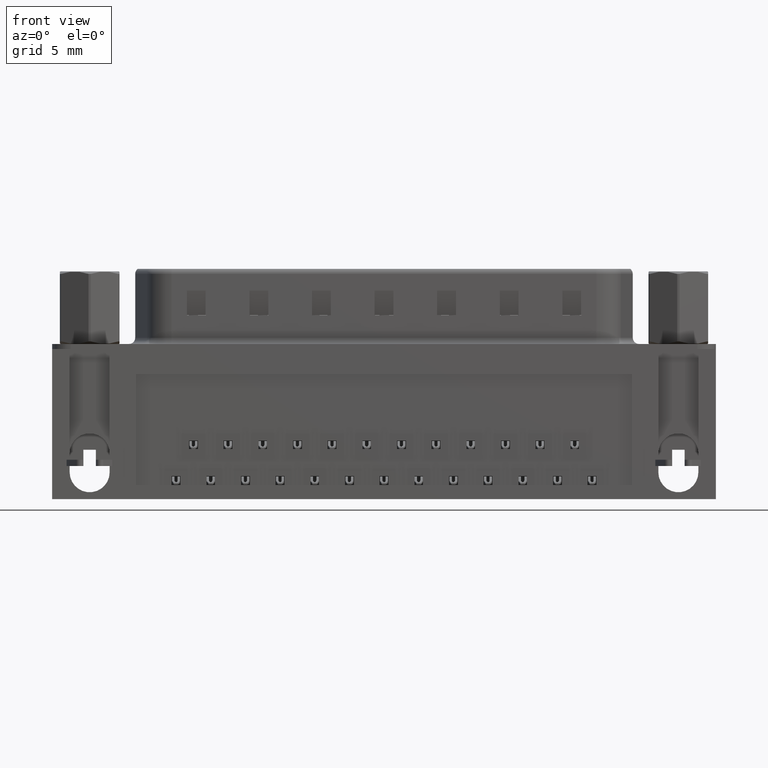
[diagram: clean part render]
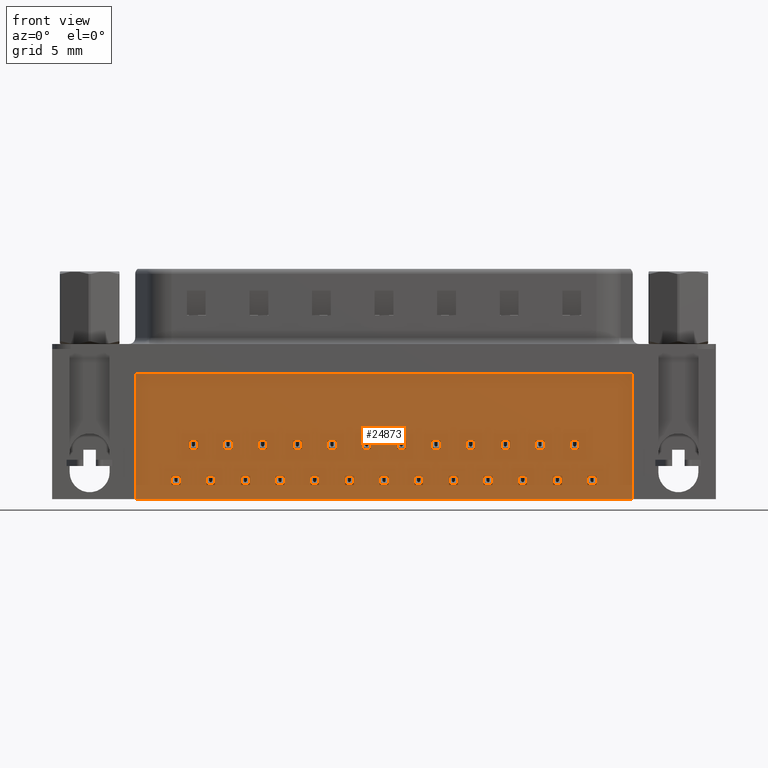
[diagram: same view with one face highlighted and labeled with its STEP entity id]
A machine part, front view. The second image highlights one B-rep face of the part: STEP entity #24873.
In plain terms, the highlighted planar face has unit normal (0, -1, 0).
Its self-contained STEP definition (entity closure, byte-faithful):
#5 = VECTOR ( 'NONE', #21969, 1000.000000000000000 ) ;
#33 = VERTEX_POINT ( 'NONE', #7464 ) ;
#51 = ORIENTED_EDGE ( 'NONE', *, *, #5116, .F. ) ;
#70 = CARTESIAN_POINT ( 'NONE',  ( 20.39999999999998100, -5.925000000000005200, -10.86720000000000000 ) ) ;
#131 = LINE ( 'NONE', #26003, #12666 ) ;
#159 = VECTOR ( 'NONE', #5510, 1000.000000000000000 ) ;
#187 = AXIS2_PLACEMENT_3D ( 'NONE', #24327, #26711, #7249 ) ;
#191 = EDGE_CURVE ( 'NONE', #14712, #21920, #20911, .T. ) ;
#234 = EDGE_CURVE ( 'NONE', #20140, #10738, #17487, .T. ) ;
#244 = LINE ( 'NONE', #1478, #22673 ) ;
#269 = EDGE_CURVE ( 'NONE', #25232, #5629, #19529, .T. ) ;
#293 = DIRECTION ( 'NONE',  ( 1.000000000000000000, 0.0000000000000000000, 0.0000000000000000000 ) ) ;
#329 = VECTOR ( 'NONE', #12126, 1000.000000000000000 ) ;
#367 = VECTOR ( 'NONE', #6105, 1000.000000000000000 ) ;
#414 = LINE ( 'NONE', #18783, #21829 ) ;
#476 = LINE ( 'NONE', #16810, #17108 ) ;
#502 = VERTEX_POINT ( 'NONE', #1288 ) ;
#579 = EDGE_CURVE ( 'NONE', #6992, #17441, #15432, .T. ) ;
#597 = VECTOR ( 'NONE', #14652, 1000.000000000000000 ) ;
#601 = EDGE_CURVE ( 'NONE', #17053, #24453, #13330, .T. ) ;
#628 = LINE ( 'NONE', #8706, #10072 ) ;
#708 = ORIENTED_EDGE ( 'NONE', *, *, #19880, .F. ) ;
#720 = LINE ( 'NONE', #12332, #10482 ) ;
#723 = DIRECTION ( 'NONE',  ( 0.0000000000000000000, 0.0000000000000000000, -1.000000000000000000 ) ) ;
#759 = EDGE_LOOP ( 'NONE', ( #4615, #12276, #17400, #2132 ) ) ;
#791 = FACE_BOUND ( 'NONE', #27803, .T. ) ;
#808 = VERTEX_POINT ( 'NONE', #20643 ) ;
#852 = LINE ( 'NONE', #24885, #23253 ) ;
#865 = EDGE_CURVE ( 'NONE', #3091, #26242, #22528, .T. ) ;
#887 = VERTEX_POINT ( 'NONE', #2472 ) ;
#892 = ORIENTED_EDGE ( 'NONE', *, *, #15813, .F. ) ;
#919 = CARTESIAN_POINT ( 'NONE',  ( 43.33999999999997500, -5.925000000000000700, -2.000000000000000000 ) ) ;
#925 = ORIENTED_EDGE ( 'NONE', *, *, #11595, .F. ) ;
#944 = LINE ( 'NONE', #7709, #4652 ) ;
#1028 = LINE ( 'NONE', #4212, #4041 ) ;
#1059 = ORIENTED_EDGE ( 'NONE', *, *, #21935, .F. ) ;
#1119 = ORIENTED_EDGE ( 'NONE', *, *, #8967, .F. ) ;
#1133 = VECTOR ( 'NONE', #24358, 1000.000000000000000 ) ;
#1147 = EDGE_CURVE ( 'NONE', #808, #8132, #2762, .T. ) ;
#1250 = DIRECTION ( 'NONE',  ( -0.0000000000000000000, -0.0000000000000000000, 1.000000000000000000 ) ) ;
#1288 = CARTESIAN_POINT ( 'NONE',  ( 18.32999999999997700, -5.925000000000004300, -10.86720000000000200 ) ) ;
#1350 = EDGE_LOOP ( 'NONE', ( #51, #7142, #13778, #10130 ) ) ;
#1366 = VECTOR ( 'NONE', #17696, 1000.000000000000000 ) ;
#1405 = DIRECTION ( 'NONE',  ( -1.000000000000000000, -0.0000000000000000000, -0.0000000000000000000 ) ) ;
#1448 = CARTESIAN_POINT ( 'NONE',  ( 12.08999999999997900, -5.925000000000003400, -10.16720000000000300 ) ) ;
#1458 = FACE_BOUND ( 'NONE', #7919, .T. ) ;
#1463 = VECTOR ( 'NONE', #20322, 1000.000000000000000 ) ;
#1475 = EDGE_LOOP ( 'NONE', ( #4044, #19263, #22935, #18608 ) ) ;
#1478 = CARTESIAN_POINT ( 'NONE',  ( 28.70999999999998000, -5.925000000000006900, -10.16720000000000100 ) ) ;
#1484 = EDGE_LOOP ( 'NONE', ( #23321, #8183, #19976, #8482 ) ) ;
#1530 = EDGE_CURVE ( 'NONE', #20278, #10295, #2728, .T. ) ;
#1547 = LINE ( 'NONE', #3702, #23269 ) ;
#1564 = CARTESIAN_POINT ( 'NONE',  ( 12.78999999999997800, -5.925000000000003400, -10.86720000000000200 ) ) ;
#1623 = DIRECTION ( 'NONE',  ( 1.000000000000000000, 0.0000000000000000000, 0.0000000000000000000 ) ) ;
#1656 = CARTESIAN_POINT ( 'NONE',  ( 30.09499999999998500, -5.925000000000006900, -7.327200000000002200 ) ) ;
#1659 = ORIENTED_EDGE ( 'NONE', *, *, #26365, .F. ) ;
#1714 = EDGE_CURVE ( 'NONE', #24566, #26641, #19074, .T. ) ;
#1797 = FACE_BOUND ( 'NONE', #1475, .T. ) ;
#1840 = DIRECTION ( 'NONE',  ( -0.0000000000000000000, -0.0000000000000000000, 1.000000000000000000 ) ) ;
#1914 = VERTEX_POINT ( 'NONE', #10290 ) ;
#1970 = CARTESIAN_POINT ( 'NONE',  ( 24.55499999999997800, -5.925000000000006000, -7.327200000000003000 ) ) ;
#1988 = EDGE_CURVE ( 'NONE', #19812, #19302, #14975, .T. ) ;
#1990 = VECTOR ( 'NONE', #13963, 1000.000000000000000 ) ;
#2021 = ORIENTED_EDGE ( 'NONE', *, *, #3214, .F. ) ;
#2030 = ORIENTED_EDGE ( 'NONE', *, *, #15064, .F. ) ;
#2041 = VERTEX_POINT ( 'NONE', #17032 ) ;
#2115 = EDGE_CURVE ( 'NONE', #12087, #10090, #6748, .T. ) ;
#2125 = VERTEX_POINT ( 'NONE', #23729 ) ;
#2127 = EDGE_CURVE ( 'NONE', #21442, #9343, #23762, .T. ) ;
#2132 = ORIENTED_EDGE ( 'NONE', *, *, #25317, .F. ) ;
#2174 = CARTESIAN_POINT ( 'NONE',  ( 14.17499999999997900, -5.925000000000003400, -8.027200000000005900 ) ) ;
#2250 = CARTESIAN_POINT ( 'NONE',  ( 37.01999999999997500, -5.925000000000008700, -10.16719999999999900 ) ) ;
#2278 = EDGE_CURVE ( 'NONE', #2778, #3559, #27509, .T. ) ;
#2337 = LINE ( 'NONE', #14422, #6394 ) ;
#2343 = DIRECTION ( 'NONE',  ( 1.000000000000000000, 0.0000000000000000000, 0.0000000000000000000 ) ) ;
#2408 = DIRECTION ( 'NONE',  ( 0.0000000000000000000, 0.0000000000000000000, -1.000000000000000000 ) ) ;
#2461 = DIRECTION ( 'NONE',  ( 1.000000000000000000, 0.0000000000000000000, 0.0000000000000000000 ) ) ;
#2472 = CARTESIAN_POINT ( 'NONE',  ( 25.93999999999997600, -5.925000000000006000, -10.86720000000000000 ) ) ;
#2495 = VERTEX_POINT ( 'NONE', #5673 ) ;
#2560 = DIRECTION ( 'NONE',  ( -1.000000000000000000, 1.239088197126279800E-015, -0.0000000000000000000 ) ) ;
#2590 = CARTESIAN_POINT ( 'NONE',  ( 9.319999999999980700, -5.925000000000002500, -10.16720000000000300 ) ) ;
#2600 = VECTOR ( 'NONE', #22510, 1000.000000000000000 ) ;
#2606 = VECTOR ( 'NONE', #14404, 1000.000000000000000 ) ;
#2639 = ORIENTED_EDGE ( 'NONE', *, *, #2127, .F. ) ;
#2640 = VECTOR ( 'NONE', #293, 1000.000000000000000 ) ;
#2679 = VERTEX_POINT ( 'NONE', #14816 ) ;
#2711 = ORIENTED_EDGE ( 'NONE', *, *, #17426, .F. ) ;
#2721 = LINE ( 'NONE', #24144, #9178 ) ;
#2728 = LINE ( 'NONE', #23396, #14315 ) ;
#2734 = DIRECTION ( 'NONE',  ( -1.000000000000000000, -0.0000000000000000000, -0.0000000000000000000 ) ) ;
#2735 = VERTEX_POINT ( 'NONE', #19312 ) ;
#2762 = LINE ( 'NONE', #13815, #3440 ) ;
#2769 = VERTEX_POINT ( 'NONE', #27646 ) ;
#2778 = VERTEX_POINT ( 'NONE', #21389 ) ;
#2780 = VERTEX_POINT ( 'NONE', #14554 ) ;
#2819 = CARTESIAN_POINT ( 'NONE',  ( 31.47999999999997900, -5.925000000000006900, -10.16720000000000100 ) ) ;
#2938 = EDGE_CURVE ( 'NONE', #3267, #24357, #27760, .T. ) ;
#2939 = CARTESIAN_POINT ( 'NONE',  ( 27.32499999999998200, -5.925000000000006000, -8.027200000000004100 ) ) ;
#2956 = ORIENTED_EDGE ( 'NONE', *, *, #18139, .F. ) ;
#2981 = LINE ( 'NONE', #26624, #8064 ) ;
#3044 = VECTOR ( 'NONE', #27657, 1000.000000000000000 ) ;
#3045 = CARTESIAN_POINT ( 'NONE',  ( 11.40499999999998200, -5.925000000000003400, -8.027200000000005900 ) ) ;
#3082 = VECTOR ( 'NONE', #4545, 1000.000000000000000 ) ;
#3091 = VERTEX_POINT ( 'NONE', #3045 ) ;
#3102 = VECTOR ( 'NONE', #24817, 1000.000000000000000 ) ;
#3105 = ORIENTED_EDGE ( 'NONE', *, *, #18675, .F. ) ;
#3214 = EDGE_CURVE ( 'NONE', #6284, #26825, #14521, .T. ) ;
#3231 = ORIENTED_EDGE ( 'NONE', *, *, #27589, .F. ) ;
#3237 = CARTESIAN_POINT ( 'NONE',  ( 37.71999999999997800, -5.925000000000008700, -10.86719999999999900 ) ) ;
#3243 = EDGE_LOOP ( 'NONE', ( #12551, #27005, #22532, #12592 ) ) ;
#3267 = VERTEX_POINT ( 'NONE', #10064 ) ;
#3275 = EDGE_CURVE ( 'NONE', #17269, #8032, #244, .T. ) ;
#3288 = DIRECTION ( 'NONE',  ( 0.0000000000000000000, 0.0000000000000000000, -1.000000000000000000 ) ) ;
#3315 = VECTOR ( 'NONE', #3288, 1000.000000000000000 ) ;
#3440 = VECTOR ( 'NONE', #7074, 1000.000000000000000 ) ;
#3453 = EDGE_LOOP ( 'NONE', ( #18116, #13072, #24637, #25374 ) ) ;
#3460 = ORIENTED_EDGE ( 'NONE', *, *, #28078, .F. ) ;
#3505 = CARTESIAN_POINT ( 'NONE',  ( 31.47999999999997900, -5.925000000000006900, -10.86720000000000000 ) ) ;
#3514 = CARTESIAN_POINT ( 'NONE',  ( 25.93999999999997600, -5.925000000000006000, -10.86720000000000000 ) ) ;
#3525 = VECTOR ( 'NONE', #5172, 1000.000000000000000 ) ;
#3559 = VERTEX_POINT ( 'NONE', #5793 ) ;
#3580 = EDGE_CURVE ( 'NONE', #502, #12087, #25648, .T. ) ;
#3649 = CARTESIAN_POINT ( 'NONE',  ( 32.86499999999998100, -5.925000000000007800, -8.027200000000002300 ) ) ;
#3666 = CARTESIAN_POINT ( 'NONE',  ( 20.39999999999998100, -5.925000000000005200, -10.86720000000000000 ) ) ;
#3668 = DIRECTION ( 'NONE',  ( 0.0000000000000000000, 0.0000000000000000000, -1.000000000000000000 ) ) ;
#3682 = LINE ( 'NONE', #19821, #9783 ) ;
#3695 = CARTESIAN_POINT ( 'NONE',  ( 43.33999999999997500, -5.925000000000000700, -12.00000000000000000 ) ) ;
#3702 = CARTESIAN_POINT ( 'NONE',  ( 12.08999999999997900, -5.925000000000003400, -10.16720000000000300 ) ) ;
#3706 = EDGE_CURVE ( 'NONE', #17702, #502, #16193, .T. ) ;
#3735 = EDGE_LOOP ( 'NONE', ( #17342, #23664, #11905, #8705 ) ) ;
#3741 = LINE ( 'NONE', #11554, #14664 ) ;
#3764 = CARTESIAN_POINT ( 'NONE',  ( 20.39999999999998100, -5.925000000000005200, -10.16720000000000100 ) ) ;
#3847 = LINE ( 'NONE', #27637, #6911 ) ;
#3852 = DIRECTION ( 'NONE',  ( -0.0000000000000000000, -0.0000000000000000000, 1.000000000000000000 ) ) ;
#3929 = EDGE_CURVE ( 'NONE', #20027, #27686, #13420, .T. ) ;
#3955 = CARTESIAN_POINT ( 'NONE',  ( 36.33499999999998700, -5.925000000000000700, -7.327200000000001300 ) ) ;
#4041 = VECTOR ( 'NONE', #10539, 1000.000000000000000 ) ;
#4044 = ORIENTED_EDGE ( 'NONE', *, *, #17957, .F. ) ;
#4103 = DIRECTION ( 'NONE',  ( -1.000000000000000000, -0.0000000000000000000, -0.0000000000000000000 ) ) ;
#4165 = FACE_BOUND ( 'NONE', #3735, .T. ) ;
#4194 = CARTESIAN_POINT ( 'NONE',  ( 38.40499999999998000, -5.925000000000008700, -7.327200000000001300 ) ) ;
#4212 = CARTESIAN_POINT ( 'NONE',  ( 21.09999999999998000, -5.925000000000005200, -10.16720000000000100 ) ) ;
#4304 = EDGE_CURVE ( 'NONE', #24357, #18789, #11010, .T. ) ;
#4382 = CARTESIAN_POINT ( 'NONE',  ( 7.249999999999978700, -5.925000000000002500, -10.16720000000000300 ) ) ;
#4386 = LINE ( 'NONE', #9295, #5 ) ;
#4401 = LINE ( 'NONE', #9527, #21437 ) ;
#4409 = LINE ( 'NONE', #22658, #14636 ) ;
#4411 = DIRECTION ( 'NONE',  ( 1.000000000000000000, -1.239088197126292200E-015, 0.0000000000000000000 ) ) ;
#4439 = LINE ( 'NONE', #12014, #9545 ) ;
#4458 = CARTESIAN_POINT ( 'NONE',  ( 17.62999999999997800, -5.925000000000004300, -10.86720000000000200 ) ) ;
#4470 = EDGE_CURVE ( 'NONE', #18789, #24914, #16147, .T. ) ;
#4513 = VERTEX_POINT ( 'NONE', #5354 ) ;
#4545 = DIRECTION ( 'NONE',  ( 0.0000000000000000000, 0.0000000000000000000, -1.000000000000000000 ) ) ;
#4615 = ORIENTED_EDGE ( 'NONE', *, *, #16059, .F. ) ;
#4640 = EDGE_CURVE ( 'NONE', #24474, #19720, #10293, .T. ) ;
#4652 = VECTOR ( 'NONE', #20670, 1000.000000000000000 ) ;
#4731 = ORIENTED_EDGE ( 'NONE', *, *, #12719, .F. ) ;
#4815 = EDGE_CURVE ( 'NONE', #26674, #17448, #852, .T. ) ;
#4814 = VERTEX_POINT ( 'NONE', #13983 ) ;
#4868 = CARTESIAN_POINT ( 'NONE',  ( 15.55999999999997700, -5.925000000000004300, -10.16720000000000300 ) ) ;
#4900 = CARTESIAN_POINT ( 'NONE',  ( 30.79499999999998700, -5.925000000000006900, -7.327200000000002200 ) ) ;
#4908 = VERTEX_POINT ( 'NONE', #1564 ) ;
#4929 = ORIENTED_EDGE ( 'NONE', *, *, #24986, .F. ) ;
#4931 = CARTESIAN_POINT ( 'NONE',  ( 27.32499999999998200, -5.925000000000006000, -8.027200000000004100 ) ) ;
#4939 = EDGE_CURVE ( 'NONE', #15776, #18421, #22217, .T. ) ;
#5056 = CARTESIAN_POINT ( 'NONE',  ( 27.32499999999998200, -5.925000000000006000, -7.327200000000003000 ) ) ;
#5065 = DIRECTION ( 'NONE',  ( 9.912705577010338000E-015, -0.0000000000000000000, 1.000000000000000000 ) ) ;
#5088 = EDGE_CURVE ( 'NONE', #20308, #13037, #476, .T. ) ;
#5107 = EDGE_CURVE ( 'NONE', #25365, #22670, #14025, .T. ) ;
#5114 = ORIENTED_EDGE ( 'NONE', *, *, #1988, .F. ) ;
#5116 = EDGE_CURVE ( 'NONE', #25086, #20278, #22550, .T. ) ;
#5172 = DIRECTION ( 'NONE',  ( -0.0000000000000000000, -0.0000000000000000000, 1.000000000000000000 ) ) ;
#5174 = FACE_BOUND ( 'NONE', #9631, .T. ) ;
#5245 = LINE ( 'NONE', #21693, #21252 ) ;
#5354 = CARTESIAN_POINT ( 'NONE',  ( 23.86999999999998000, -5.925000000000000700, -10.16720000000000100 ) ) ;
#5366 = VECTOR ( 'NONE', #19607, 1000.000000000000000 ) ;
#5434 = VECTOR ( 'NONE', #3668, 1000.000000000000000 ) ;
#5439 = CARTESIAN_POINT ( 'NONE',  ( 31.47999999999997900, -5.925000000000006900, -10.16720000000000100 ) ) ;
#5440 = EDGE_CURVE ( 'NONE', #21920, #25058, #12996, .T. ) ;
#5495 = CARTESIAN_POINT ( 'NONE',  ( 23.16999999999998000, -5.925000000000005200, -10.16720000000000100 ) ) ;
#5501 = CARTESIAN_POINT ( 'NONE',  ( 32.86499999999998100, -5.925000000000007800, -8.027200000000002300 ) ) ;
#5510 = DIRECTION ( 'NONE',  ( -1.000000000000000000, -0.0000000000000000000, -0.0000000000000000000 ) ) ;
#5525 = FACE_BOUND ( 'NONE', #9267, .T. ) ;
#5590 = CARTESIAN_POINT ( 'NONE',  ( 26.63999999999997600, -5.925000000000006000, -10.16720000000000100 ) ) ;
#5629 = VERTEX_POINT ( 'NONE', #13987 ) ;
#5656 = EDGE_LOOP ( 'NONE', ( #18551, #24995, #12064, #2030 ) ) ;
#5673 = CARTESIAN_POINT ( 'NONE',  ( 40.48999999999998100, -5.925000000000000700, -10.16719999999999900 ) ) ;
#5704 = EDGE_CURVE ( 'NONE', #22115, #24982, #22519, .T. ) ;
#5717 = VECTOR ( 'NONE', #26323, 1000.000000000000000 ) ;
#5793 = CARTESIAN_POINT ( 'NONE',  ( 23.16999999999998000, -5.925000000000005200, -10.86720000000000000 ) ) ;
#5802 = VERTEX_POINT ( 'NONE', #3505 ) ;
#5961 = VECTOR ( 'NONE', #16384, 1000.000000000000000 ) ;
#5991 = VECTOR ( 'NONE', #723, 1000.000000000000000 ) ;
#5997 = EDGE_CURVE ( 'NONE', #10295, #12198, #20784, .T. ) ;
#6043 = DIRECTION ( 'NONE',  ( -1.000000000000000000, -0.0000000000000000000, -0.0000000000000000000 ) ) ;
#6072 = CARTESIAN_POINT ( 'NONE',  ( 34.94999999999998200, -5.925000000000007800, -10.86719999999999900 ) ) ;
#6082 = ORIENTED_EDGE ( 'NONE', *, *, #191, .F. ) ;
#6102 = ORIENTED_EDGE ( 'NONE', *, *, #21554, .F. ) ;
#6105 = DIRECTION ( 'NONE',  ( 0.0000000000000000000, 0.0000000000000000000, -1.000000000000000000 ) ) ;
#6147 = VERTEX_POINT ( 'NONE', #13923 ) ;
#6179 = CARTESIAN_POINT ( 'NONE',  ( 21.09999999999998000, -5.925000000000000700, -10.16720000000000100 ) ) ;
#6196 = FACE_BOUND ( 'NONE', #3243, .T. ) ;
#6237 = CARTESIAN_POINT ( 'NONE',  ( 32.86499999999998100, -5.925000000000007800, -7.327200000000002200 ) ) ;
#6248 = ORIENTED_EDGE ( 'NONE', *, *, #15764, .F. ) ;
#6284 = VERTEX_POINT ( 'NONE', #23105 ) ;
#6291 = VERTEX_POINT ( 'NONE', #12451 ) ;
#6300 = VERTEX_POINT ( 'NONE', #24155 ) ;
#6346 = DIRECTION ( 'NONE',  ( -1.000000000000000000, -0.0000000000000000000, -0.0000000000000000000 ) ) ;
#6369 = EDGE_CURVE ( 'NONE', #6972, #2125, #4409, .T. ) ;
#6394 = VECTOR ( 'NONE', #1405, 1000.000000000000000 ) ;
#6425 = LINE ( 'NONE', #12302, #22130 ) ;
#6451 = LINE ( 'NONE', #4194, #24820 ) ;
#6486 = VECTOR ( 'NONE', #9126, 1000.000000000000000 ) ;
#6509 = FACE_BOUND ( 'NONE', #15004, .T. ) ;
#6540 = CARTESIAN_POINT ( 'NONE',  ( 16.94499999999998600, -5.925000000000000700, -7.327200000000003900 ) ) ;
#6553 = DIRECTION ( 'NONE',  ( -0.0000000000000000000, -0.0000000000000000000, 1.000000000000000000 ) ) ;
#6617 = CARTESIAN_POINT ( 'NONE',  ( 8.634999999999989100, -5.925000000000000700, -7.327200000000004800 ) ) ;
#6651 = DIRECTION ( 'NONE',  ( 1.000000000000000000, 0.0000000000000000000, 0.0000000000000000000 ) ) ;
#6656 = EDGE_CURVE ( 'NONE', #10090, #17702, #4439, .T. ) ;
#6725 = DIRECTION ( 'NONE',  ( 9.912705577010325400E-015, -0.0000000000000000000, 1.000000000000000000 ) ) ;
#6748 = LINE ( 'NONE', #19513, #22433 ) ;
#6801 = ORIENTED_EDGE ( 'NONE', *, *, #2278, .F. ) ;
#6834 = VECTOR ( 'NONE', #11097, 1000.000000000000000 ) ;
#6887 = ORIENTED_EDGE ( 'NONE', *, *, #8843, .F. ) ;
#6890 = CARTESIAN_POINT ( 'NONE',  ( 17.62999999999997800, -5.925000000000004300, -10.86720000000000200 ) ) ;
#6911 = VECTOR ( 'NONE', #14647, 1000.000000000000000 ) ;
#6972 = VERTEX_POINT ( 'NONE', #23078 ) ;
#6992 = VERTEX_POINT ( 'NONE', #14250 ) ;
#6994 = CARTESIAN_POINT ( 'NONE',  ( 6.549999999999979400, -5.925000000000002500, -10.86720000000000200 ) ) ;
#7031 = EDGE_CURVE ( 'NONE', #10687, #22115, #17348, .T. ) ;
#7057 = EDGE_CURVE ( 'NONE', #18421, #25232, #720, .T. ) ;
#7074 = DIRECTION ( 'NONE',  ( 1.000000000000000000, 0.0000000000000000000, 0.0000000000000000000 ) ) ;
#7106 = LINE ( 'NONE', #20238, #26128 ) ;
#7142 = ORIENTED_EDGE ( 'NONE', *, *, #8695, .F. ) ;
#7155 = CARTESIAN_POINT ( 'NONE',  ( 39.10499999999999000, -5.925000000000000700, -7.327200000000001300 ) ) ;
#7249 = DIRECTION ( 'NONE',  ( 0.0000000000000000000, 0.0000000000000000000, -1.000000000000000000 ) ) ;
#7288 = VECTOR ( 'NONE', #4411, 1000.000000000000000 ) ;
#7391 = DIRECTION ( 'NONE',  ( 0.0000000000000000000, 0.0000000000000000000, -1.000000000000000000 ) ) ;
#7436 = ORIENTED_EDGE ( 'NONE', *, *, #19604, .F. ) ;
#7464 = CARTESIAN_POINT ( 'NONE',  ( 29.40999999999997900, -5.925000000000006900, -10.86720000000000000 ) ) ;
#7586 = ORIENTED_EDGE ( 'NONE', *, *, #601, .F. ) ;
#7593 = ORIENTED_EDGE ( 'NONE', *, *, #4640, .F. ) ;
#7606 = VECTOR ( 'NONE', #8886, 1000.000000000000000 ) ;
#7644 = VECTOR ( 'NONE', #7904, 1000.000000000000000 ) ;
#7709 = CARTESIAN_POINT ( 'NONE',  ( 6.549999999999979400, -5.925000000000002500, -10.16720000000000300 ) ) ;
#7873 = ORIENTED_EDGE ( 'NONE', *, *, #26404, .F. ) ;
#7904 = DIRECTION ( 'NONE',  ( -0.0000000000000000000, -0.0000000000000000000, 1.000000000000000000 ) ) ;
#7919 = EDGE_LOOP ( 'NONE', ( #20067, #892, #13051, #13596 ) ) ;
#7925 = CARTESIAN_POINT ( 'NONE',  ( 28.02499999999998800, -5.925000000000006000, -7.327200000000003000 ) ) ;
#7986 = LINE ( 'NONE', #20868, #7644 ) ;
#8015 = DIRECTION ( 'NONE',  ( -0.0000000000000000000, -0.0000000000000000000, 1.000000000000000000 ) ) ;
#8032 = VERTEX_POINT ( 'NONE', #20139 ) ;
#8040 = LINE ( 'NONE', #10493, #2640 ) ;
#8054 = CARTESIAN_POINT ( 'NONE',  ( 30.79499999999998700, -5.925000000000000700, -7.327200000000002200 ) ) ;
#8055 = CARTESIAN_POINT ( 'NONE',  ( 14.85999999999997800, -5.925000000000003400, -10.16720000000000300 ) ) ;
#8064 = VECTOR ( 'NONE', #26726, 1000.000000000000000 ) ;
#8067 = LINE ( 'NONE', #24118, #5366 ) ;
#8084 = LINE ( 'NONE', #6237, #21054 ) ;
#8102 = VERTEX_POINT ( 'NONE', #18526 ) ;
#8119 = LINE ( 'NONE', #4931, #1366 ) ;
#8132 = VERTEX_POINT ( 'NONE', #20609 ) ;
#8156 = DIRECTION ( 'NONE',  ( 9.912705577010325400E-015, -0.0000000000000000000, 1.000000000000000000 ) ) ;
#8157 = CARTESIAN_POINT ( 'NONE',  ( 30.09499999999998500, -5.925000000000006900, -8.027200000000004100 ) ) ;
#8183 = ORIENTED_EDGE ( 'NONE', *, *, #16681, .F. ) ;
#8275 = DIRECTION ( 'NONE',  ( 0.0000000000000000000, 0.0000000000000000000, -1.000000000000000000 ) ) ;
#8370 = LINE ( 'NONE', #15869, #2600 ) ;
#8377 = DIRECTION ( 'NONE',  ( 0.0000000000000000000, 0.0000000000000000000, -1.000000000000000000 ) ) ;
#8403 = EDGE_CURVE ( 'NONE', #15360, #12580, #16021, .T. ) ;
#8446 = EDGE_CURVE ( 'NONE', #27029, #10687, #11178, .T. ) ;
#8482 = ORIENTED_EDGE ( 'NONE', *, *, #8664, .F. ) ;
#8568 = FACE_BOUND ( 'NONE', #12962, .T. ) ;
#8664 = EDGE_CURVE ( 'NONE', #19086, #25555, #13938, .T. ) ;
#8695 = EDGE_CURVE ( 'NONE', #12198, #25086, #26855, .T. ) ;
#8705 = ORIENTED_EDGE ( 'NONE', *, *, #14782, .F. ) ;
#8706 = CARTESIAN_POINT ( 'NONE',  ( 10.70499999999998200, -5.925000000000002500, -8.027200000000005900 ) ) ;
#8735 = CARTESIAN_POINT ( 'NONE',  ( 10.01999999999998000, -5.925000000000002500, -10.86720000000000200 ) ) ;
#8740 = LINE ( 'NONE', #7925, #12123 ) ;
#8803 = ORIENTED_EDGE ( 'NONE', *, *, #6369, .F. ) ;
#8843 = EDGE_CURVE ( 'NONE', #27077, #4908, #7106, .T. ) ;
#8867 = LINE ( 'NONE', #13705, #11597 ) ;
#8886 = DIRECTION ( 'NONE',  ( -1.000000000000000000, -0.0000000000000000000, -0.0000000000000000000 ) ) ;
#8923 = LINE ( 'NONE', #19279, #10945 ) ;
#8967 = EDGE_CURVE ( 'NONE', #4513, #2778, #2337, .T. ) ;
#9080 = CARTESIAN_POINT ( 'NONE',  ( 39.10499999999998300, -5.925000000000008700, -8.027200000000002300 ) ) ;
#9099 = EDGE_CURVE ( 'NONE', #2769, #6972, #11123, .T. ) ;
#9126 = DIRECTION ( 'NONE',  ( -0.0000000000000000000, -0.0000000000000000000, 1.000000000000000000 ) ) ;
#9128 = CARTESIAN_POINT ( 'NONE',  ( 21.78499999999998200, -5.925000000000005200, -8.027200000000004100 ) ) ;
#9178 = VECTOR ( 'NONE', #11400, 1000.000000000000000 ) ;
#9259 = DIRECTION ( 'NONE',  ( 9.912705577010312700E-015, -0.0000000000000000000, 1.000000000000000000 ) ) ;
#9267 = EDGE_LOOP ( 'NONE', ( #27436, #24636, #16311, #10647 ) ) ;
#9284 = EDGE_CURVE ( 'NONE', #9316, #19086, #8740, .T. ) ;
#9295 = CARTESIAN_POINT ( 'NONE',  ( 8.634999999999989100, -5.925000000000002500, -7.327200000000004800 ) ) ;
#9316 = VERTEX_POINT ( 'NONE', #16589 ) ;
#9329 = LINE ( 'NONE', #17244, #7288 ) ;
#9343 = VERTEX_POINT ( 'NONE', #27401 ) ;
#9468 = CARTESIAN_POINT ( 'NONE',  ( 37.01999999999997500, -5.925000000000008700, -10.16719999999999900 ) ) ;
#9501 = LINE ( 'NONE', #25446, #3044 ) ;
#9527 = CARTESIAN_POINT ( 'NONE',  ( 35.63499999999997700, -5.925000000000007800, -8.027200000000002300 ) ) ;
#9536 = CARTESIAN_POINT ( 'NONE',  ( 38.40499999999998000, -5.925000000000008700, -8.027200000000002300 ) ) ;
#9545 = VECTOR ( 'NONE', #14115, 1000.000000000000000 ) ;
#9561 = LINE ( 'NONE', #19050, #23519 ) ;
#9585 = CARTESIAN_POINT ( 'NONE',  ( 10.70499999999998200, -5.925000000000002500, -7.327200000000004800 ) ) ;
#9631 = EDGE_LOOP ( 'NONE', ( #11946, #2956, #7873, #925 ) ) ;
#9634 = ORIENTED_EDGE ( 'NONE', *, *, #18216, .F. ) ;
#9704 = EDGE_CURVE ( 'NONE', #2679, #17667, #26725, .T. ) ;
#9712 = VERTEX_POINT ( 'NONE', #17831 ) ;
#9719 = DIRECTION ( 'NONE',  ( 0.0000000000000000000, 0.0000000000000000000, -1.000000000000000000 ) ) ;
#9783 = VECTOR ( 'NONE', #11397, 1000.000000000000000 ) ;
#9835 = EDGE_CURVE ( 'NONE', #25555, #26882, #11763, .T. ) ;
#9869 = CARTESIAN_POINT ( 'NONE',  ( 13.47499999999998000, -5.925000000000003400, -7.327200000000004800 ) ) ;
#9985 = VERTEX_POINT ( 'NONE', #17353 ) ;
#10051 = DIRECTION ( 'NONE',  ( 1.000000000000000000, 0.0000000000000000000, 0.0000000000000000000 ) ) ;
#10064 = CARTESIAN_POINT ( 'NONE',  ( 32.86499999999998100, -5.925000000000007800, -7.327200000000002200 ) ) ;
#10065 = LINE ( 'NONE', #13947, #3315 ) ;
#10072 = VECTOR ( 'NONE', #10678, 1000.000000000000000 ) ;
#10090 = VERTEX_POINT ( 'NONE', #13154 ) ;
#10130 = ORIENTED_EDGE ( 'NONE', *, *, #1530, .F. ) ;
#10174 = CARTESIAN_POINT ( 'NONE',  ( 13.47499999999998000, -5.925000000000003400, -8.027200000000005900 ) ) ;
#10290 = CARTESIAN_POINT ( 'NONE',  ( 23.86999999999998000, -5.925000000000005200, -10.86720000000000000 ) ) ;
#10293 = LINE ( 'NONE', #17606, #26300 ) ;
#10295 = VERTEX_POINT ( 'NONE', #1656 ) ;
#10318 = ORIENTED_EDGE ( 'NONE', *, *, #8403, .F. ) ;
#10338 = CARTESIAN_POINT ( 'NONE',  ( 23.16999999999998000, -5.925000000000005200, -10.86720000000000000 ) ) ;
#10341 = LINE ( 'NONE', #14610, #12415 ) ;
#10482 = VECTOR ( 'NONE', #23346, 1000.000000000000000 ) ;
#10493 = CARTESIAN_POINT ( 'NONE',  ( 39.78999999999997800, -5.925000000000008700, -10.86719999999999900 ) ) ;
#10539 = DIRECTION ( 'NONE',  ( -0.0000000000000000000, -0.0000000000000000000, 1.000000000000000000 ) ) ;
#10596 = DIRECTION ( 'NONE',  ( 0.0000000000000000000, 0.0000000000000000000, -1.000000000000000000 ) ) ;
#10647 = ORIENTED_EDGE ( 'NONE', *, *, #2115, .F. ) ;
#10648 = CARTESIAN_POINT ( 'NONE',  ( 19.71499999999998200, -5.925000000000005200, -8.027200000000004100 ) ) ;
#10678 = DIRECTION ( 'NONE',  ( 1.000000000000000000, -1.239088197126292200E-015, 0.0000000000000000000 ) ) ;
#10687 = VERTEX_POINT ( 'NONE', #9536 ) ;
#10721 = ORIENTED_EDGE ( 'NONE', *, *, #5704, .F. ) ;
#10738 = VERTEX_POINT ( 'NONE', #14485 ) ;
#10801 = LINE ( 'NONE', #27337, #329 ) ;
#10876 = EDGE_LOOP ( 'NONE', ( #3460, #28089, #21671, #7586 ) ) ;
#10894 = CARTESIAN_POINT ( 'NONE',  ( 11.40499999999998900, -5.925000000000003400, -7.327200000000004800 ) ) ;
#10905 = CARTESIAN_POINT ( 'NONE',  ( 15.55999999999997700, -5.925000000000000700, -10.16720000000000300 ) ) ;
#10910 = CARTESIAN_POINT ( 'NONE',  ( 24.55499999999997800, -5.925000000000006000, -7.327200000000003000 ) ) ;
#10944 = VECTOR ( 'NONE', #18816, 1000.000000000000000 ) ;
#10945 = VECTOR ( 'NONE', #15087, 1000.000000000000000 ) ;
#10958 = DIRECTION ( 'NONE',  ( -1.000000000000000000, -0.0000000000000000000, -0.0000000000000000000 ) ) ;
#10965 = CARTESIAN_POINT ( 'NONE',  ( 14.85999999999997800, -5.925000000000003400, -10.86720000000000200 ) ) ;
#11010 = LINE ( 'NONE', #3649, #16172 ) ;
#11065 = VECTOR ( 'NONE', #2408, 1000.000000000000000 ) ;
#11097 = DIRECTION ( 'NONE',  ( -8.673617379884035500E-017, 0.0000000000000000000, -1.000000000000000000 ) ) ;
#11123 = LINE ( 'NONE', #27773, #16279 ) ;
#11127 = VECTOR ( 'NONE', #22986, 1000.000000000000000 ) ;
#11132 = LINE ( 'NONE', #9128, #26444 ) ;
#11154 = CARTESIAN_POINT ( 'NONE',  ( 30.09499999999998500, -5.925000000000006900, -8.027200000000004100 ) ) ;
#11178 = LINE ( 'NONE', #23403, #22779 ) ;
#11189 = CARTESIAN_POINT ( 'NONE',  ( 27.32499999999998200, -5.925000000000006000, -7.327200000000003000 ) ) ;
#11225 = EDGE_LOOP ( 'NONE', ( #6102, #17516, #18492, #14901 ) ) ;
#11390 = CARTESIAN_POINT ( 'NONE',  ( 18.32999999999997700, -5.925000000000000700, -10.16720000000000300 ) ) ;
#11397 = DIRECTION ( 'NONE',  ( 1.000000000000000000, 0.0000000000000000000, 0.0000000000000000000 ) ) ;
#11400 = DIRECTION ( 'NONE',  ( -0.0000000000000000000, -0.0000000000000000000, 1.000000000000000000 ) ) ;
#11460 = EDGE_CURVE ( 'NONE', #5802, #14712, #15044, .T. ) ;
#11469 = VECTOR ( 'NONE', #16724, 1000.000000000000000 ) ;
#11477 = LINE ( 'NONE', #23718, #11803 ) ;
#11554 = CARTESIAN_POINT ( 'NONE',  ( 20.39999999999998100, -5.925000000000005200, -10.16720000000000100 ) ) ;
#11576 = CARTESIAN_POINT ( 'NONE',  ( 6.549999999999979400, -5.925000000000002500, -10.86720000000000200 ) ) ;
#11595 = EDGE_CURVE ( 'NONE', #12894, #14565, #25545, .T. ) ;
#11597 = VECTOR ( 'NONE', #5065, 1000.000000000000000 ) ;
#11643 = EDGE_CURVE ( 'NONE', #18008, #33, #17780, .T. ) ;
#11763 = LINE ( 'NONE', #5056, #5991 ) ;
#11803 = VECTOR ( 'NONE', #10596, 1000.000000000000000 ) ;
#11828 = LINE ( 'NONE', #11576, #11469 ) ;
#11903 = EDGE_LOOP ( 'NONE', ( #4929, #21432, #20099, #2639 ) ) ;
#11905 = ORIENTED_EDGE ( 'NONE', *, *, #2938, .F. ) ;
#11935 = EDGE_CURVE ( 'NONE', #6300, #9712, #23491, .T. ) ;
#11946 = ORIENTED_EDGE ( 'NONE', *, *, #25170, .F. ) ;
#12014 = CARTESIAN_POINT ( 'NONE',  ( 17.62999999999997800, -5.925000000000004300, -10.16720000000000300 ) ) ;
#12018 = DIRECTION ( 'NONE',  ( -1.000000000000000000, -0.0000000000000000000, -0.0000000000000000000 ) ) ;
#12064 = ORIENTED_EDGE ( 'NONE', *, *, #579, .F. ) ;
#12082 = DIRECTION ( 'NONE',  ( 0.0000000000000000000, 0.0000000000000000000, -1.000000000000000000 ) ) ;
#12087 = VERTEX_POINT ( 'NONE', #11390 ) ;
#12091 = EDGE_CURVE ( 'NONE', #9985, #26674, #14691, .T. ) ;
#12123 = VECTOR ( 'NONE', #18808, 1000.000000000000000 ) ;
#12126 = DIRECTION ( 'NONE',  ( 9.912705577010325400E-015, -0.0000000000000000000, 1.000000000000000000 ) ) ;
#12183 = DIRECTION ( 'NONE',  ( -1.000000000000000000, -0.0000000000000000000, -0.0000000000000000000 ) ) ;
#12191 = DIRECTION ( 'NONE',  ( -1.000000000000000000, -0.0000000000000000000, -0.0000000000000000000 ) ) ;
#12198 = VERTEX_POINT ( 'NONE', #8157 ) ;
#12276 = ORIENTED_EDGE ( 'NONE', *, *, #19996, .F. ) ;
#12301 = FACE_BOUND ( 'NONE', #11903, .T. ) ;
#12302 = CARTESIAN_POINT ( 'NONE',  ( 7.934999999999983600, -5.925000000000002500, -7.327200000000004800 ) ) ;
#12323 = CARTESIAN_POINT ( 'NONE',  ( 34.94999999999998200, -5.925000000000000700, -10.16719999999999900 ) ) ;
#12332 = CARTESIAN_POINT ( 'NONE',  ( 14.17499999999998600, -5.925000000000003400, -7.327200000000004800 ) ) ;
#12371 = CARTESIAN_POINT ( 'NONE',  ( 25.25499999999998500, -5.925000000000006000, -7.327200000000003000 ) ) ;
#12415 = VECTOR ( 'NONE', #8015, 1000.000000000000000 ) ;
#12423 = VECTOR ( 'NONE', #1250, 1000.000000000000000 ) ;
#12451 = CARTESIAN_POINT ( 'NONE',  ( 40.48999999999998100, -5.925000000000008700, -10.86719999999999900 ) ) ;
#12545 = VECTOR ( 'NONE', #27065, 1000.000000000000000 ) ;
#12551 = ORIENTED_EDGE ( 'NONE', *, *, #12091, .F. ) ;
#12552 = EDGE_CURVE ( 'NONE', #22670, #20027, #3741, .T. ) ;
#12580 = VERTEX_POINT ( 'NONE', #20981 ) ;
#12591 = CARTESIAN_POINT ( 'NONE',  ( 7.249999999999978700, -5.925000000000002500, -10.86720000000000200 ) ) ;
#12592 = ORIENTED_EDGE ( 'NONE', *, *, #4815, .F. ) ;
#12600 = ORIENTED_EDGE ( 'NONE', *, *, #26359, .F. ) ;
#12656 = CARTESIAN_POINT ( 'NONE',  ( 14.17499999999998600, -5.925000000000000700, -7.327200000000004800 ) ) ;
#12666 = VECTOR ( 'NONE', #23730, 1000.000000000000000 ) ;
#12670 = FACE_BOUND ( 'NONE', #13948, .T. ) ;
#12708 = CARTESIAN_POINT ( 'NONE',  ( 12.08999999999997900, -5.925000000000003400, -10.86720000000000200 ) ) ;
#12719 = EDGE_CURVE ( 'NONE', #18465, #24474, #6425, .T. ) ;
#12743 = VECTOR ( 'NONE', #25787, 1000.000000000000000 ) ;
#12773 = ORIENTED_EDGE ( 'NONE', *, *, #13053, .F. ) ;
#12861 = VERTEX_POINT ( 'NONE', #13106 ) ;
#12873 = CARTESIAN_POINT ( 'NONE',  ( 32.17999999999997800, -5.925000000000006900, -10.16720000000000100 ) ) ;
#12894 = VERTEX_POINT ( 'NONE', #13974 ) ;
#12959 = ORIENTED_EDGE ( 'NONE', *, *, #13821, .F. ) ;
#12962 = EDGE_LOOP ( 'NONE', ( #17963, #9634, #14481, #26153 ) ) ;
#12996 = LINE ( 'NONE', #2819, #1463 ) ;
#13037 = VERTEX_POINT ( 'NONE', #23291 ) ;
#13051 = ORIENTED_EDGE ( 'NONE', *, *, #22868, .F. ) ;
#13052 = VECTOR ( 'NONE', #19207, 1000.000000000000000 ) ;
#13053 = EDGE_CURVE ( 'NONE', #3559, #1914, #25807, .T. ) ;
#13072 = ORIENTED_EDGE ( 'NONE', *, *, #18093, .T. ) ;
#13084 = CARTESIAN_POINT ( 'NONE',  ( 7.934999999999983600, -5.925000000000002500, -8.027200000000005900 ) ) ;
#13101 = LINE ( 'NONE', #27287, #5961 ) ;
#13106 = CARTESIAN_POINT ( 'NONE',  ( 36.33499999999998000, -5.925000000000007800, -8.027200000000002300 ) ) ;
#13154 = CARTESIAN_POINT ( 'NONE',  ( 17.62999999999997800, -5.925000000000004300, -10.16720000000000300 ) ) ;
#13242 = EDGE_CURVE ( 'NONE', #13037, #2041, #14668, .T. ) ;
#13244 = VECTOR ( 'NONE', #1840, 1000.000000000000000 ) ;
#13295 = DIRECTION ( 'NONE',  ( 9.912705577010325400E-015, -0.0000000000000000000, 1.000000000000000000 ) ) ;
#13330 = LINE ( 'NONE', #18840, #26950 ) ;
#13420 = LINE ( 'NONE', #3666, #12743 ) ;
#13596 = ORIENTED_EDGE ( 'NONE', *, *, #234, .F. ) ;
#13666 = FACE_BOUND ( 'NONE', #27304, .T. ) ;
#13705 = CARTESIAN_POINT ( 'NONE',  ( 19.71499999999998900, -5.925000000000005200, -7.327200000000003900 ) ) ;
#13738 = DIRECTION ( 'NONE',  ( 0.0000000000000000000, 0.0000000000000000000, -1.000000000000000000 ) ) ;
#13744 = CARTESIAN_POINT ( 'NONE',  ( 28.02499999999998800, -5.925000000000000700, -7.327200000000003000 ) ) ;
#13748 = CARTESIAN_POINT ( 'NONE',  ( 19.71499999999998900, -5.925000000000000700, -7.327200000000003900 ) ) ;
#13778 = ORIENTED_EDGE ( 'NONE', *, *, #5997, .F. ) ;
#13815 = CARTESIAN_POINT ( 'NONE',  ( 24.55499999999997800, -5.925000000000006000, -8.027200000000004100 ) ) ;
#13821 = EDGE_CURVE ( 'NONE', #1914, #4513, #2721, .T. ) ;
#13923 = CARTESIAN_POINT ( 'NONE',  ( 37.01999999999997500, -5.925000000000008700, -10.86719999999999900 ) ) ;
#13938 = LINE ( 'NONE', #24270, #17688 ) ;
#13947 = CARTESIAN_POINT ( 'NONE',  ( 31.47999999999997900, -5.925000000000006900, -10.16720000000000100 ) ) ;
#13948 = EDGE_LOOP ( 'NONE', ( #23404, #6887, #12600, #2021 ) ) ;
#13963 = DIRECTION ( 'NONE',  ( 0.0000000000000000000, 0.0000000000000000000, -1.000000000000000000 ) ) ;
#13974 = CARTESIAN_POINT ( 'NONE',  ( 37.71999999999997800, -5.925000000000000700, -10.16719999999999900 ) ) ;
#13983 = CARTESIAN_POINT ( 'NONE',  ( 6.549999999999979400, -5.925000000000002500, -10.16720000000000300 ) ) ;
#13987 = CARTESIAN_POINT ( 'NONE',  ( 13.47499999999998000, -5.925000000000003400, -7.327200000000004800 ) ) ;
#14025 = LINE ( 'NONE', #3764, #21861 ) ;
#14032 = EDGE_CURVE ( 'NONE', #5629, #15776, #15109, .T. ) ;
#14115 = DIRECTION ( 'NONE',  ( 0.0000000000000000000, 0.0000000000000000000, -1.000000000000000000 ) ) ;
#14160 = ORIENTED_EDGE ( 'NONE', *, *, #19699, .F. ) ;
#14161 = CARTESIAN_POINT ( 'NONE',  ( 16.24499999999998300, -5.925000000000004300, -7.327200000000003900 ) ) ;
#14192 = CARTESIAN_POINT ( 'NONE',  ( 39.78999999999997800, -5.925000000000008700, -10.16719999999999900 ) ) ;
#14227 = EDGE_CURVE ( 'NONE', #27906, #24566, #11828, .T. ) ;
#14250 = CARTESIAN_POINT ( 'NONE',  ( 35.63499999999997700, -5.925000000000007800, -7.327200000000001300 ) ) ;
#14278 = VECTOR ( 'NONE', #9719, 1000.000000000000000 ) ;
#14313 = EDGE_CURVE ( 'NONE', #20025, #20140, #27137, .T. ) ;
#14315 = VECTOR ( 'NONE', #12191, 1000.000000000000000 ) ;
#14404 = DIRECTION ( 'NONE',  ( 9.912705577010325400E-015, -0.0000000000000000000, 1.000000000000000000 ) ) ;
#14422 = CARTESIAN_POINT ( 'NONE',  ( 23.16999999999998000, -5.925000000000005200, -10.16720000000000100 ) ) ;
#14425 = CARTESIAN_POINT ( 'NONE',  ( 34.94999999999998200, -5.925000000000007800, -10.16719999999999900 ) ) ;
#14426 = ORIENTED_EDGE ( 'NONE', *, *, #4939, .F. ) ;
#14440 = VERTEX_POINT ( 'NONE', #19383 ) ;
#14469 = CARTESIAN_POINT ( 'NONE',  ( 18.32999999999997700, -5.925000000000004300, -10.16720000000000300 ) ) ;
#14481 = ORIENTED_EDGE ( 'NONE', *, *, #13242, .F. ) ;
#14485 = CARTESIAN_POINT ( 'NONE',  ( 25.93999999999997600, -5.925000000000006000, -10.16720000000000100 ) ) ;
#14517 = DIRECTION ( 'NONE',  ( -1.000000000000000000, -0.0000000000000000000, -0.0000000000000000000 ) ) ;
#14521 = LINE ( 'NONE', #1448, #597 ) ;
#14554 = CARTESIAN_POINT ( 'NONE',  ( 25.25499999999998500, -5.925000000000000700, -7.327200000000003000 ) ) ;
#14565 = VERTEX_POINT ( 'NONE', #2250 ) ;
#14592 = VECTOR ( 'NONE', #6651, 1000.000000000000000 ) ;
#14610 = CARTESIAN_POINT ( 'NONE',  ( 40.48999999999998100, -5.925000000000008700, -10.16719999999999900 ) ) ;
#14636 = VECTOR ( 'NONE', #18298, 1000.000000000000000 ) ;
#14647 = DIRECTION ( 'NONE',  ( 9.912705577010312700E-015, -0.0000000000000000000, 1.000000000000000000 ) ) ;
#14652 = DIRECTION ( 'NONE',  ( -1.000000000000000000, -0.0000000000000000000, -0.0000000000000000000 ) ) ;
#14664 = VECTOR ( 'NONE', #13738, 1000.000000000000000 ) ;
#14668 = LINE ( 'NONE', #24559, #27177 ) ;
#14691 = LINE ( 'NONE', #4868, #6486 ) ;
#14712 = VERTEX_POINT ( 'NONE', #17691 ) ;
#14733 = VECTOR ( 'NONE', #7391, 1000.000000000000000 ) ;
#14768 = DIRECTION ( 'NONE',  ( 0.0000000000000000000, 0.0000000000000000000, -1.000000000000000000 ) ) ;
#14782 = EDGE_CURVE ( 'NONE', #24914, #3267, #8084, .T. ) ;
#14816 = CARTESIAN_POINT ( 'NONE',  ( 9.319999999999980700, -5.925000000000002500, -10.16720000000000300 ) ) ;
#14830 = VERTEX_POINT ( 'NONE', #10965 ) ;
#14840 = EDGE_CURVE ( 'NONE', #22439, #6300, #26108, .T. ) ;
#14847 = ORIENTED_EDGE ( 'NONE', *, *, #11460, .F. ) ;
#14901 = ORIENTED_EDGE ( 'NONE', *, *, #3275, .F. ) ;
#14917 = DIRECTION ( 'NONE',  ( -1.000000000000000000, -0.0000000000000000000, -0.0000000000000000000 ) ) ;
#14975 = LINE ( 'NONE', #27125, #14278 ) ;
#15004 = EDGE_LOOP ( 'NONE', ( #15900, #14426, #20827, #15968 ) ) ;
#15044 = LINE ( 'NONE', #15524, #25868 ) ;
#15064 = EDGE_CURVE ( 'NONE', #26969, #6992, #27463, .T. ) ;
#15069 = CARTESIAN_POINT ( 'NONE',  ( 28.70999999999998000, -5.925000000000006900, -10.86720000000000000 ) ) ;
#15087 = DIRECTION ( 'NONE',  ( -1.000000000000000000, -0.0000000000000000000, -0.0000000000000000000 ) ) ;
#15109 = LINE ( 'NONE', #9869, #21208 ) ;
#15197 = CARTESIAN_POINT ( 'NONE',  ( 13.47499999999998000, -5.925000000000003400, -7.327200000000004800 ) ) ;
#15318 = CARTESIAN_POINT ( 'NONE',  ( 34.24999999999997200, -5.925000000000007800, -10.86719999999999900 ) ) ;
#15334 = DIRECTION ( 'NONE',  ( -1.000000000000000000, -0.0000000000000000000, -0.0000000000000000000 ) ) ;
#15342 = CARTESIAN_POINT ( 'NONE',  ( 9.319999999999980700, -5.925000000000002500, -10.16720000000000300 ) ) ;
#15344 = ORIENTED_EDGE ( 'NONE', *, *, #24562, .F. ) ;
#15360 = VERTEX_POINT ( 'NONE', #19356 ) ;
#15419 = VECTOR ( 'NONE', #24576, 1000.000000000000000 ) ;
#15432 = LINE ( 'NONE', #26884, #14733 ) ;
#15524 = CARTESIAN_POINT ( 'NONE',  ( 31.47999999999997900, -5.925000000000006900, -10.86720000000000000 ) ) ;
#15764 = EDGE_CURVE ( 'NONE', #4814, #27906, #944, .T. ) ;
#15772 = FACE_BOUND ( 'NONE', #26703, .T. ) ;
#15776 = VERTEX_POINT ( 'NONE', #23011 ) ;
#15799 = VECTOR ( 'NONE', #6725, 1000.000000000000000 ) ;
#15813 = EDGE_CURVE ( 'NONE', #887, #20025, #16828, .T. ) ;
#15869 = CARTESIAN_POINT ( 'NONE',  ( 25.93999999999997600, -5.925000000000006000, -10.16720000000000100 ) ) ;
#15900 = ORIENTED_EDGE ( 'NONE', *, *, #7057, .F. ) ;
#15968 = ORIENTED_EDGE ( 'NONE', *, *, #269, .F. ) ;
#15979 = LINE ( 'NONE', #16893, #24079 ) ;
#16021 = LINE ( 'NONE', #27680, #367 ) ;
#16051 = ORIENTED_EDGE ( 'NONE', *, *, #23461, .F. ) ;
#16059 = EDGE_CURVE ( 'NONE', #25359, #2735, #131, .T. ) ;
#16104 = CARTESIAN_POINT ( 'NONE',  ( 12.08999999999997900, -5.925000000000003400, -10.16720000000000300 ) ) ;
#16147 = LINE ( 'NONE', #22481, #3525 ) ;
#16172 = VECTOR ( 'NONE', #21629, 1000.000000000000000 ) ;
#16193 = LINE ( 'NONE', #4458, #24287 ) ;
#16279 = VECTOR ( 'NONE', #25576, 1000.000000000000000 ) ;
#16311 = ORIENTED_EDGE ( 'NONE', *, *, #6656, .F. ) ;
#16384 = DIRECTION ( 'NONE',  ( -1.000000000000000000, -0.0000000000000000000, -0.0000000000000000000 ) ) ;
#16429 = ORIENTED_EDGE ( 'NONE', *, *, #5440, .F. ) ;
#16499 = EDGE_CURVE ( 'NONE', #24453, #18978, #24814, .T. ) ;
#16589 = CARTESIAN_POINT ( 'NONE',  ( 28.02499999999998100, -5.925000000000006000, -8.027200000000004100 ) ) ;
#16638 = EDGE_CURVE ( 'NONE', #8102, #18465, #4386, .T. ) ;
#16681 = EDGE_CURVE ( 'NONE', #26882, #9316, #8119, .T. ) ;
#16724 = DIRECTION ( 'NONE',  ( 1.000000000000000000, 0.0000000000000000000, 0.0000000000000000000 ) ) ;
#16729 = CARTESIAN_POINT ( 'NONE',  ( 34.24999999999997200, -5.925000000000007800, -10.16719999999999900 ) ) ;
#16738 = VECTOR ( 'NONE', #13295, 1000.000000000000000 ) ;
#16810 = CARTESIAN_POINT ( 'NONE',  ( 21.78499999999998200, -5.925000000000005200, -7.327200000000003000 ) ) ;
#16814 = CARTESIAN_POINT ( 'NONE',  ( 38.40499999999998000, -5.925000000000008700, -8.027200000000002300 ) ) ;
#16826 = EDGE_CURVE ( 'NONE', #26242, #15360, #18355, .T. ) ;
#16828 = LINE ( 'NONE', #3514, #28041 ) ;
#16893 = CARTESIAN_POINT ( 'NONE',  ( 29.40999999999997900, -5.925000000000006900, -10.16720000000000100 ) ) ;
#17032 = CARTESIAN_POINT ( 'NONE',  ( 21.78499999999998200, -5.925000000000005200, -8.027200000000004100 ) ) ;
#17053 = VERTEX_POINT ( 'NONE', #12323 ) ;
#17077 = FACE_OUTER_BOUND ( 'NONE', #3453, .T. ) ;
#17108 = VECTOR ( 'NONE', #10958, 1000.000000000000000 ) ;
#17244 = CARTESIAN_POINT ( 'NONE',  ( 14.85999999999997800, -5.925000000000003400, -10.86720000000000200 ) ) ;
#17269 = VERTEX_POINT ( 'NONE', #24263 ) ;
#17342 = ORIENTED_EDGE ( 'NONE', *, *, #4470, .F. ) ;
#17348 = LINE ( 'NONE', #16814, #19743 ) ;
#17353 = CARTESIAN_POINT ( 'NONE',  ( 15.55999999999997700, -5.925000000000004300, -10.86720000000000200 ) ) ;
#17400 = ORIENTED_EDGE ( 'NONE', *, *, #9704, .F. ) ;
#17420 = CARTESIAN_POINT ( 'NONE',  ( 3.699999999999983700, -5.925000000000000700, -2.000000000000000000 ) ) ;
#17422 = FACE_BOUND ( 'NONE', #25594, .T. ) ;
#17426 = EDGE_CURVE ( 'NONE', #2780, #27753, #13101, .T. ) ;
#17430 = VERTEX_POINT ( 'NONE', #3695 ) ;
#17438 = ORIENTED_EDGE ( 'NONE', *, *, #865, .F. ) ;
#17441 = VERTEX_POINT ( 'NONE', #18872 ) ;
#17448 = VERTEX_POINT ( 'NONE', #8055 ) ;
#17487 = LINE ( 'NONE', #21641, #22598 ) ;
#17509 = DIRECTION ( 'NONE',  ( 0.0000000000000000000, 0.0000000000000000000, -1.000000000000000000 ) ) ;
#17516 = ORIENTED_EDGE ( 'NONE', *, *, #11643, .F. ) ;
#17606 = CARTESIAN_POINT ( 'NONE',  ( 7.934999999999983600, -5.925000000000002500, -7.327200000000004800 ) ) ;
#17667 = VERTEX_POINT ( 'NONE', #23424 ) ;
#17688 = VECTOR ( 'NONE', #22034, 1000.000000000000000 ) ;
#17691 = CARTESIAN_POINT ( 'NONE',  ( 32.17999999999997800, -5.925000000000006900, -10.86720000000000000 ) ) ;
#17696 = DIRECTION ( 'NONE',  ( 1.000000000000000000, 0.0000000000000000000, 0.0000000000000000000 ) ) ;
#17702 = VERTEX_POINT ( 'NONE', #6890 ) ;
#17720 = VECTOR ( 'NONE', #18953, 1000.000000000000000 ) ;
#17780 = LINE ( 'NONE', #22418, #15419 ) ;
#17784 = VECTOR ( 'NONE', #9259, 1000.000000000000000 ) ;
#17831 = CARTESIAN_POINT ( 'NONE',  ( 3.699999999999982900, -5.925000000000001600, -12.00000000000000000 ) ) ;
#17957 = EDGE_CURVE ( 'NONE', #27686, #25365, #1028, .T. ) ;
#17963 = ORIENTED_EDGE ( 'NONE', *, *, #21483, .F. ) ;
#17992 = VERTEX_POINT ( 'NONE', #23957 ) ;
#18008 = VERTEX_POINT ( 'NONE', #15069 ) ;
#18049 = DIRECTION ( 'NONE',  ( 1.000000000000000000, 0.0000000000000000000, 0.0000000000000000000 ) ) ;
#18093 = EDGE_CURVE ( 'NONE', #9712, #17430, #3682, .T. ) ;
#18116 = ORIENTED_EDGE ( 'NONE', *, *, #11935, .T. ) ;
#18128 = FACE_BOUND ( 'NONE', #10876, .T. ) ;
#18139 = EDGE_CURVE ( 'NONE', #6147, #27566, #20727, .T. ) ;
#18211 = DIRECTION ( 'NONE',  ( 1.000000000000000000, 0.0000000000000000000, 0.0000000000000000000 ) ) ;
#18216 = EDGE_CURVE ( 'NONE', #2041, #14440, #11132, .T. ) ;
#18298 = DIRECTION ( 'NONE',  ( 1.000000000000000000, 0.0000000000000000000, 0.0000000000000000000 ) ) ;
#18306 = CARTESIAN_POINT ( 'NONE',  ( 30.79499999999998000, -5.925000000000006900, -8.027200000000004100 ) ) ;
#18355 = LINE ( 'NONE', #9585, #12545 ) ;
#18421 = VERTEX_POINT ( 'NONE', #2174 ) ;
#18425 = EDGE_CURVE ( 'NONE', #9343, #17992, #11477, .T. ) ;
#18460 = CARTESIAN_POINT ( 'NONE',  ( 34.24999999999997200, -5.925000000000007800, -10.16719999999999900 ) ) ;
#18465 = VERTEX_POINT ( 'NONE', #6617 ) ;
#18492 = ORIENTED_EDGE ( 'NONE', *, *, #28043, .F. ) ;
#18526 = CARTESIAN_POINT ( 'NONE',  ( 8.634999999999983800, -5.925000000000002500, -8.027200000000005900 ) ) ;
#18551 = ORIENTED_EDGE ( 'NONE', *, *, #24129, .F. ) ;
#18608 = ORIENTED_EDGE ( 'NONE', *, *, #5107, .F. ) ;
#18629 = LINE ( 'NONE', #12371, #2606 ) ;
#18675 = EDGE_CURVE ( 'NONE', #27753, #808, #21034, .T. ) ;
#18702 = DIRECTION ( 'NONE',  ( 1.000000000000000000, 0.0000000000000000000, 0.0000000000000000000 ) ) ;
#18755 = CARTESIAN_POINT ( 'NONE',  ( 21.09999999999998000, -5.925000000000005200, -10.86720000000000000 ) ) ;
#18783 = CARTESIAN_POINT ( 'NONE',  ( 37.71999999999997800, -5.925000000000008700, -10.16719999999999900 ) ) ;
#18789 = VERTEX_POINT ( 'NONE', #24506 ) ;
#18808 = DIRECTION ( 'NONE',  ( 9.912705577010325400E-015, -0.0000000000000000000, 1.000000000000000000 ) ) ;
#18816 = DIRECTION ( 'NONE',  ( -0.0000000000000000000, -0.0000000000000000000, 1.000000000000000000 ) ) ;
#18840 = CARTESIAN_POINT ( 'NONE',  ( 34.24999999999997200, -5.925000000000007800, -10.16719999999999900 ) ) ;
#18872 = CARTESIAN_POINT ( 'NONE',  ( 35.63499999999997700, -5.925000000000007800, -8.027200000000002300 ) ) ;
#18934 = EDGE_LOOP ( 'NONE', ( #16051, #7436, #5114, #15344 ) ) ;
#18950 = ORIENTED_EDGE ( 'NONE', *, *, #16826, .F. ) ;
#18953 = DIRECTION ( 'NONE',  ( 1.000000000000000000, 0.0000000000000000000, 0.0000000000000000000 ) ) ;
#18978 = VERTEX_POINT ( 'NONE', #15318 ) ;
#19017 = CARTESIAN_POINT ( 'NONE',  ( 38.40499999999998000, -5.925000000000008700, -7.327200000000001300 ) ) ;
#19050 = CARTESIAN_POINT ( 'NONE',  ( 37.01999999999997500, -5.925000000000008700, -10.16719999999999900 ) ) ;
#19074 = LINE ( 'NONE', #4382, #13244 ) ;
#19086 = VERTEX_POINT ( 'NONE', #13744 ) ;
#19105 = ORIENTED_EDGE ( 'NONE', *, *, #25310, .F. ) ;
#19207 = DIRECTION ( 'NONE',  ( -0.0000000000000000000, -0.0000000000000000000, 1.000000000000000000 ) ) ;
#19212 = DIRECTION ( 'NONE',  ( 1.000000000000000000, 0.0000000000000000000, 0.0000000000000000000 ) ) ;
#19213 = CARTESIAN_POINT ( 'NONE',  ( 3.699999999999983700, -5.925000000000000700, -2.000000000000000000 ) ) ;
#19263 = ORIENTED_EDGE ( 'NONE', *, *, #3929, .F. ) ;
#19279 = CARTESIAN_POINT ( 'NONE',  ( 39.78999999999997800, -5.925000000000008700, -10.16719999999999900 ) ) ;
#19302 = VERTEX_POINT ( 'NONE', #27517 ) ;
#19305 = CARTESIAN_POINT ( 'NONE',  ( 7.934999999999983600, -5.925000000000002500, -7.327200000000004800 ) ) ;
#19312 = CARTESIAN_POINT ( 'NONE',  ( 10.01999999999998000, -5.925000000000000700, -10.16720000000000300 ) ) ;
#19356 = CARTESIAN_POINT ( 'NONE',  ( 10.70499999999998200, -5.925000000000002500, -7.327200000000004800 ) ) ;
#19383 = CARTESIAN_POINT ( 'NONE',  ( 22.48499999999998200, -5.925000000000005200, -8.027200000000004100 ) ) ;
#19420 = CARTESIAN_POINT ( 'NONE',  ( 19.01499999999998300, -5.925000000000004300, -7.327200000000003900 ) ) ;
#19513 = CARTESIAN_POINT ( 'NONE',  ( 17.62999999999997800, -5.925000000000004300, -10.16720000000000300 ) ) ;
#19529 = LINE ( 'NONE', #15197, #7606 ) ;
#19604 = EDGE_CURVE ( 'NONE', #19302, #6291, #8040, .T. ) ;
#19607 = DIRECTION ( 'NONE',  ( 1.000000000000000000, -1.239088197126292200E-015, 0.0000000000000000000 ) ) ;
#19640 = ORIENTED_EDGE ( 'NONE', *, *, #7031, .F. ) ;
#19699 = EDGE_CURVE ( 'NONE', #12580, #3091, #628, .T. ) ;
#19720 = VERTEX_POINT ( 'NONE', #13084 ) ;
#19743 = VECTOR ( 'NONE', #19212, 1000.000000000000000 ) ;
#19801 = CARTESIAN_POINT ( 'NONE',  ( 36.33499999999998700, -5.925000000000007800, -7.327200000000001300 ) ) ;
#19812 = VERTEX_POINT ( 'NONE', #14192 ) ;
#19821 = CARTESIAN_POINT ( 'NONE',  ( 3.699999999999982900, -5.925000000000000700, -12.00000000000000000 ) ) ;
#19844 = LINE ( 'NONE', #19801, #15799 ) ;
#19875 = ORIENTED_EDGE ( 'NONE', *, *, #27626, .F. ) ;
#19880 = EDGE_CURVE ( 'NONE', #8132, #2780, #18629, .T. ) ;
#19976 = ORIENTED_EDGE ( 'NONE', *, *, #9835, .F. ) ;
#19996 = EDGE_CURVE ( 'NONE', #17667, #25359, #23355, .T. ) ;
#20025 = VERTEX_POINT ( 'NONE', #21577 ) ;
#20027 = VERTEX_POINT ( 'NONE', #70 ) ;
#20067 = ORIENTED_EDGE ( 'NONE', *, *, #14313, .F. ) ;
#20071 = VECTOR ( 'NONE', #2343, 1000.000000000000000 ) ;
#20099 = ORIENTED_EDGE ( 'NONE', *, *, #18425, .F. ) ;
#20139 = CARTESIAN_POINT ( 'NONE',  ( 28.70999999999998000, -5.925000000000006900, -10.16720000000000100 ) ) ;
#20140 = VERTEX_POINT ( 'NONE', #22737 ) ;
#20176 = FACE_BOUND ( 'NONE', #26564, .T. ) ;
#20238 = CARTESIAN_POINT ( 'NONE',  ( 12.08999999999997900, -5.925000000000003400, -10.86720000000000200 ) ) ;
#20278 = VERTEX_POINT ( 'NONE', #8054 ) ;
#20308 = VERTEX_POINT ( 'NONE', #20761 ) ;
#20322 = DIRECTION ( 'NONE',  ( -1.000000000000000000, -0.0000000000000000000, -0.0000000000000000000 ) ) ;
#20385 = VECTOR ( 'NONE', #24267, 1000.000000000000000 ) ;
#20405 = VERTEX_POINT ( 'NONE', #6072 ) ;
#20526 = CARTESIAN_POINT ( 'NONE',  ( 28.70999999999998000, -5.925000000000006900, -10.16720000000000100 ) ) ;
#20559 = VECTOR ( 'NONE', #12082, 1000.000000000000000 ) ;
#20609 = CARTESIAN_POINT ( 'NONE',  ( 25.25499999999997800, -5.925000000000006000, -8.027200000000004100 ) ) ;
#20643 = CARTESIAN_POINT ( 'NONE',  ( 24.55499999999997800, -5.925000000000006000, -8.027200000000004100 ) ) ;
#20652 = DIRECTION ( 'NONE',  ( -1.000000000000000000, 1.239088197126292200E-015, -0.0000000000000000000 ) ) ;
#20670 = DIRECTION ( 'NONE',  ( 0.0000000000000000000, 0.0000000000000000000, -1.000000000000000000 ) ) ;
#20682 = CARTESIAN_POINT ( 'NONE',  ( 34.24999999999997200, -5.925000000000007800, -10.86719999999999900 ) ) ;
#20727 = LINE ( 'NONE', #26600, #14592 ) ;
#20761 = CARTESIAN_POINT ( 'NONE',  ( 22.48499999999998900, -5.925000000000000700, -7.327200000000003000 ) ) ;
#20784 = LINE ( 'NONE', #22476, #3082 ) ;
#20827 = ORIENTED_EDGE ( 'NONE', *, *, #14032, .F. ) ;
#20858 = CARTESIAN_POINT ( 'NONE',  ( 9.319999999999980700, -5.925000000000002500, -10.86720000000000200 ) ) ;
#20861 = FACE_BOUND ( 'NONE', #1350, .T. ) ;
#20868 = CARTESIAN_POINT ( 'NONE',  ( 43.33999999999997500, -5.925000000000000700, -2.000000000000000000 ) ) ;
#20911 = LINE ( 'NONE', #12873, #13052 ) ;
#20913 = DIRECTION ( 'NONE',  ( -1.000000000000000000, -0.0000000000000000000, -0.0000000000000000000 ) ) ;
#20981 = CARTESIAN_POINT ( 'NONE',  ( 10.70499999999998200, -5.925000000000002500, -8.027200000000005900 ) ) ;
#21024 = VECTOR ( 'NONE', #12018, 1000.000000000000000 ) ;
#21034 = LINE ( 'NONE', #10910, #5717 ) ;
#21054 = VECTOR ( 'NONE', #6043, 1000.000000000000000 ) ;
#21123 = ORIENTED_EDGE ( 'NONE', *, *, #1147, .F. ) ;
#21148 = ORIENTED_EDGE ( 'NONE', *, *, #1714, .F. ) ;
#21174 = ORIENTED_EDGE ( 'NONE', *, *, #14227, .F. ) ;
#21208 = VECTOR ( 'NONE', #25073, 1000.000000000000000 ) ;
#21252 = VECTOR ( 'NONE', #6553, 1000.000000000000000 ) ;
#21389 = CARTESIAN_POINT ( 'NONE',  ( 23.16999999999998000, -5.925000000000005200, -10.16720000000000100 ) ) ;
#21432 = ORIENTED_EDGE ( 'NONE', *, *, #26645, .F. ) ;
#21437 = VECTOR ( 'NONE', #18211, 1000.000000000000000 ) ;
#21442 = VERTEX_POINT ( 'NONE', #13748 ) ;
#21483 = EDGE_CURVE ( 'NONE', #14440, #20308, #10801, .T. ) ;
#21520 = FACE_BOUND ( 'NONE', #18934, .T. ) ;
#21554 = EDGE_CURVE ( 'NONE', #33, #17269, #15979, .T. ) ;
#21577 = CARTESIAN_POINT ( 'NONE',  ( 26.63999999999997600, -5.925000000000006000, -10.86720000000000000 ) ) ;
#21629 = DIRECTION ( 'NONE',  ( 1.000000000000000000, 0.0000000000000000000, 0.0000000000000000000 ) ) ;
#21641 = CARTESIAN_POINT ( 'NONE',  ( 25.93999999999997600, -5.925000000000006000, -10.16720000000000100 ) ) ;
#21671 = ORIENTED_EDGE ( 'NONE', *, *, #16499, .F. ) ;
#21693 = CARTESIAN_POINT ( 'NONE',  ( 12.78999999999997800, -5.925000000000003400, -10.16720000000000300 ) ) ;
#21775 = EDGE_LOOP ( 'NONE', ( #19875, #8803, #22365, #3231 ) ) ;
#21829 = VECTOR ( 'NONE', #27576, 1000.000000000000000 ) ;
#21861 = VECTOR ( 'NONE', #22027, 1000.000000000000000 ) ;
#21920 = VERTEX_POINT ( 'NONE', #22218 ) ;
#21935 = EDGE_CURVE ( 'NONE', #26641, #4814, #2981, .T. ) ;
#21969 = DIRECTION ( 'NONE',  ( 9.912705577010325400E-015, -0.0000000000000000000, 1.000000000000000000 ) ) ;
#21975 = CARTESIAN_POINT ( 'NONE',  ( 7.249999999999979600, -5.925000000000000700, -10.16720000000000300 ) ) ;
#22017 = VECTOR ( 'NONE', #24011, 1000.000000000000000 ) ;
#22027 = DIRECTION ( 'NONE',  ( -1.000000000000000000, -0.0000000000000000000, -0.0000000000000000000 ) ) ;
#22034 = DIRECTION ( 'NONE',  ( -1.000000000000000000, -0.0000000000000000000, -0.0000000000000000000 ) ) ;
#22115 = VERTEX_POINT ( 'NONE', #9080 ) ;
#22126 = DIRECTION ( 'NONE',  ( 0.0000000000000000000, 0.0000000000000000000, -1.000000000000000000 ) ) ;
#22130 = VECTOR ( 'NONE', #14517, 1000.000000000000000 ) ;
#22189 = ORIENTED_EDGE ( 'NONE', *, *, #22540, .F. ) ;
#22198 = PLANE ( 'NONE',  #187 ) ;
#22217 = LINE ( 'NONE', #10174, #26590 ) ;
#22218 = CARTESIAN_POINT ( 'NONE',  ( 32.17999999999997800, -5.925000000000000700, -10.16720000000000100 ) ) ;
#22365 = ORIENTED_EDGE ( 'NONE', *, *, #9099, .F. ) ;
#22418 = CARTESIAN_POINT ( 'NONE',  ( 28.70999999999998000, -5.925000000000006900, -10.86720000000000000 ) ) ;
#22433 = VECTOR ( 'NONE', #15334, 1000.000000000000000 ) ;
#22439 = VERTEX_POINT ( 'NONE', #919 ) ;
#22476 = CARTESIAN_POINT ( 'NONE',  ( 30.09499999999998500, -5.925000000000006900, -7.327200000000002200 ) ) ;
#22481 = CARTESIAN_POINT ( 'NONE',  ( 33.56499999999998400, -5.925000000000007800, -7.327200000000002200 ) ) ;
#22510 = DIRECTION ( 'NONE',  ( 0.0000000000000000000, 0.0000000000000000000, -1.000000000000000000 ) ) ;
#22519 = LINE ( 'NONE', #27547, #26917 ) ;
#22528 = LINE ( 'NONE', #10894, #16738 ) ;
#22532 = ORIENTED_EDGE ( 'NONE', *, *, #24013, .F. ) ;
#22540 = EDGE_CURVE ( 'NONE', #25058, #5802, #10065, .T. ) ;
#22550 = LINE ( 'NONE', #4900, #17784 ) ;
#22563 = EDGE_LOOP ( 'NONE', ( #22657, #1659, #7593, #4731 ) ) ;
#22566 = EDGE_LOOP ( 'NONE', ( #21148, #21174, #6248, #1059 ) ) ;
#22598 = VECTOR ( 'NONE', #14917, 1000.000000000000000 ) ;
#22657 = ORIENTED_EDGE ( 'NONE', *, *, #16638, .F. ) ;
#22658 = CARTESIAN_POINT ( 'NONE',  ( 16.24499999999998300, -5.925000000000004300, -8.027200000000005900 ) ) ;
#22670 = VERTEX_POINT ( 'NONE', #25127 ) ;
#22673 = VECTOR ( 'NONE', #12183, 1000.000000000000000 ) ;
#22737 = CARTESIAN_POINT ( 'NONE',  ( 26.63999999999997600, -5.925000000000000700, -10.16720000000000100 ) ) ;
#22779 = VECTOR ( 'NONE', #8377, 1000.000000000000000 ) ;
#22868 = EDGE_CURVE ( 'NONE', #10738, #887, #8370, .T. ) ;
#22935 = ORIENTED_EDGE ( 'NONE', *, *, #12552, .F. ) ;
#22986 = DIRECTION ( 'NONE',  ( -0.0000000000000000000, -0.0000000000000000000, 1.000000000000000000 ) ) ;
#23011 = CARTESIAN_POINT ( 'NONE',  ( 13.47499999999998000, -5.925000000000003400, -8.027200000000005900 ) ) ;
#23078 = CARTESIAN_POINT ( 'NONE',  ( 16.24499999999998300, -5.925000000000004300, -8.027200000000005900 ) ) ;
#23103 = VECTOR ( 'NONE', #2560, 1000.000000000000000 ) ;
#23105 = CARTESIAN_POINT ( 'NONE',  ( 12.78999999999997800, -5.925000000000000700, -10.16720000000000300 ) ) ;
#23204 = FACE_BOUND ( 'NONE', #22563, .T. ) ;
#23223 = LINE ( 'NONE', #20526, #1133 ) ;
#23249 = LINE ( 'NONE', #14161, #159 ) ;
#23253 = VECTOR ( 'NONE', #20652, 1000.000000000000000 ) ;
#23269 = VECTOR ( 'NONE', #14768, 1000.000000000000000 ) ;
#23291 = CARTESIAN_POINT ( 'NONE',  ( 21.78499999999998200, -5.925000000000005200, -7.327200000000003000 ) ) ;
#23321 = ORIENTED_EDGE ( 'NONE', *, *, #9284, .F. ) ;
#23346 = DIRECTION ( 'NONE',  ( 9.912705577010325400E-015, -0.0000000000000000000, 1.000000000000000000 ) ) ;
#23355 = LINE ( 'NONE', #20858, #28093 ) ;
#23396 = CARTESIAN_POINT ( 'NONE',  ( 30.09499999999998500, -5.925000000000006900, -7.327200000000002200 ) ) ;
#23403 = CARTESIAN_POINT ( 'NONE',  ( 38.40499999999998000, -5.925000000000008700, -7.327200000000001300 ) ) ;
#23404 = ORIENTED_EDGE ( 'NONE', *, *, #27251, .F. ) ;
#23424 = CARTESIAN_POINT ( 'NONE',  ( 9.319999999999980700, -5.925000000000002500, -10.86720000000000200 ) ) ;
#23461 = EDGE_CURVE ( 'NONE', #6291, #2495, #10341, .T. ) ;
#23491 = LINE ( 'NONE', #17420, #6834 ) ;
#23519 = VECTOR ( 'NONE', #8275, 1000.000000000000000 ) ;
#23545 = EDGE_CURVE ( 'NONE', #14830, #9985, #9329, .T. ) ;
#23617 = VERTEX_POINT ( 'NONE', #10648 ) ;
#23664 = ORIENTED_EDGE ( 'NONE', *, *, #4304, .F. ) ;
#23718 = CARTESIAN_POINT ( 'NONE',  ( 19.01499999999998300, -5.925000000000004300, -7.327200000000003900 ) ) ;
#23729 = CARTESIAN_POINT ( 'NONE',  ( 16.94499999999998300, -5.925000000000004300, -8.027200000000005900 ) ) ;
#23730 = DIRECTION ( 'NONE',  ( -0.0000000000000000000, -0.0000000000000000000, 1.000000000000000000 ) ) ;
#23762 = LINE ( 'NONE', #19420, #23103 ) ;
#23842 = DIRECTION ( 'NONE',  ( 1.000000000000000000, 0.0000000000000000000, 0.0000000000000000000 ) ) ;
#23873 = FACE_BOUND ( 'NONE', #21775, .T. ) ;
#23922 = CARTESIAN_POINT ( 'NONE',  ( 32.86499999999998100, -5.925000000000007800, -7.327200000000002200 ) ) ;
#23957 = CARTESIAN_POINT ( 'NONE',  ( 19.01499999999998300, -5.925000000000004300, -8.027200000000004100 ) ) ;
#24011 = DIRECTION ( 'NONE',  ( 0.0000000000000000000, 0.0000000000000000000, -1.000000000000000000 ) ) ;
#24013 = EDGE_CURVE ( 'NONE', #17448, #14830, #24917, .T. ) ;
#24079 = VECTOR ( 'NONE', #3852, 1000.000000000000000 ) ;
#24101 = VERTEX_POINT ( 'NONE', #6540 ) ;
#24118 = CARTESIAN_POINT ( 'NONE',  ( 19.01499999999998300, -5.925000000000004300, -8.027200000000004100 ) ) ;
#24129 = EDGE_CURVE ( 'NONE', #12861, #26969, #19844, .T. ) ;
#24144 = CARTESIAN_POINT ( 'NONE',  ( 23.86999999999998000, -5.925000000000005200, -10.16720000000000100 ) ) ;
#24155 = CARTESIAN_POINT ( 'NONE',  ( 3.699999999999983700, -5.925000000000000700, -2.000000000000000000 ) ) ;
#24218 = FACE_BOUND ( 'NONE', #11225, .T. ) ;
#24232 = DIRECTION ( 'NONE',  ( 1.000000000000000000, 0.0000000000000000000, 0.0000000000000000000 ) ) ;
#24263 = CARTESIAN_POINT ( 'NONE',  ( 29.40999999999997900, -5.925000000000000700, -10.16720000000000100 ) ) ;
#24267 = DIRECTION ( 'NONE',  ( -1.000000000000000000, -0.0000000000000000000, -0.0000000000000000000 ) ) ;
#24270 = CARTESIAN_POINT ( 'NONE',  ( 27.32499999999998200, -5.925000000000006000, -7.327200000000003000 ) ) ;
#24287 = VECTOR ( 'NONE', #23842, 1000.000000000000000 ) ;
#24327 = CARTESIAN_POINT ( 'NONE',  ( 0.0000000000000000000, -5.925000000000000700, 0.0000000000000000000 ) ) ;
#24357 = VERTEX_POINT ( 'NONE', #5501 ) ;
#24358 = DIRECTION ( 'NONE',  ( 0.0000000000000000000, 0.0000000000000000000, -1.000000000000000000 ) ) ;
#24453 = VERTEX_POINT ( 'NONE', #18460 ) ;
#24474 = VERTEX_POINT ( 'NONE', #19305 ) ;
#24506 = CARTESIAN_POINT ( 'NONE',  ( 33.56499999999998400, -5.925000000000007800, -8.027200000000002300 ) ) ;
#24559 = CARTESIAN_POINT ( 'NONE',  ( 21.78499999999998200, -5.925000000000005200, -7.327200000000003000 ) ) ;
#24562 = EDGE_CURVE ( 'NONE', #2495, #19812, #8923, .T. ) ;
#24566 = VERTEX_POINT ( 'NONE', #12591 ) ;
#24569 = LINE ( 'NONE', #14425, #10944 ) ;
#24576 = DIRECTION ( 'NONE',  ( 1.000000000000000000, 0.0000000000000000000, 0.0000000000000000000 ) ) ;
#24636 = ORIENTED_EDGE ( 'NONE', *, *, #3706, .F. ) ;
#24637 = ORIENTED_EDGE ( 'NONE', *, *, #26206, .T. ) ;
#24814 = LINE ( 'NONE', #16729, #5434 ) ;
#24817 = DIRECTION ( 'NONE',  ( 1.000000000000000000, 0.0000000000000000000, 0.0000000000000000000 ) ) ;
#24820 = VECTOR ( 'NONE', #4103, 1000.000000000000000 ) ;
#24873 = ADVANCED_FACE ( 'NONE', ( #20176, #24218, #13666, #18128, #5174, #1458, #1797, #5525, #6196, #12670, #27966, #27286, #21520, #15772, #20861, #4165, #26581, #25888, #8568, #12301, #23873, #6509, #791, #23204, #17422, #17077 ), #22198, .T. ) ;
#24885 = CARTESIAN_POINT ( 'NONE',  ( 14.85999999999997800, -5.925000000000003400, -10.16720000000000300 ) ) ;
#24914 = VERTEX_POINT ( 'NONE', #26519 ) ;
#24917 = LINE ( 'NONE', #25355, #20559 ) ;
#24982 = VERTEX_POINT ( 'NONE', #7155 ) ;
#24986 = EDGE_CURVE ( 'NONE', #23617, #21442, #8867, .T. ) ;
#24995 = ORIENTED_EDGE ( 'NONE', *, *, #26020, .F. ) ;
#25058 = VERTEX_POINT ( 'NONE', #5439 ) ;
#25073 = DIRECTION ( 'NONE',  ( 0.0000000000000000000, 0.0000000000000000000, -1.000000000000000000 ) ) ;
#25086 = VERTEX_POINT ( 'NONE', #18306 ) ;
#25095 = EDGE_CURVE ( 'NONE', #18978, #20405, #27586, .T. ) ;
#25127 = CARTESIAN_POINT ( 'NONE',  ( 20.39999999999998100, -5.925000000000005200, -10.16720000000000100 ) ) ;
#25170 = EDGE_CURVE ( 'NONE', #27566, #12894, #414, .T. ) ;
#25218 = CARTESIAN_POINT ( 'NONE',  ( 35.63499999999997700, -5.925000000000007800, -7.327200000000001300 ) ) ;
#25232 = VERTEX_POINT ( 'NONE', #12656 ) ;
#25234 = ORIENTED_EDGE ( 'NONE', *, *, #8446, .F. ) ;
#25310 = EDGE_CURVE ( 'NONE', #24982, #27029, #6451, .T. ) ;
#25317 = EDGE_CURVE ( 'NONE', #2735, #2679, #25480, .T. ) ;
#25355 = CARTESIAN_POINT ( 'NONE',  ( 14.85999999999997800, -5.925000000000003400, -10.16720000000000300 ) ) ;
#25359 = VERTEX_POINT ( 'NONE', #8735 ) ;
#25365 = VERTEX_POINT ( 'NONE', #6179 ) ;
#25374 = ORIENTED_EDGE ( 'NONE', *, *, #14840, .T. ) ;
#25446 = CARTESIAN_POINT ( 'NONE',  ( 7.934999999999983600, -5.925000000000002500, -8.027200000000005900 ) ) ;
#25480 = LINE ( 'NONE', #15342, #25839 ) ;
#25545 = LINE ( 'NONE', #9468, #26241 ) ;
#25555 = VERTEX_POINT ( 'NONE', #11189 ) ;
#25576 = DIRECTION ( 'NONE',  ( 0.0000000000000000000, 0.0000000000000000000, -1.000000000000000000 ) ) ;
#25594 = EDGE_LOOP ( 'NONE', ( #10721, #19640, #25234, #19105 ) ) ;
#25648 = LINE ( 'NONE', #14469, #12423 ) ;
#25787 = DIRECTION ( 'NONE',  ( 1.000000000000000000, 0.0000000000000000000, 0.0000000000000000000 ) ) ;
#25807 = LINE ( 'NONE', #10338, #17720 ) ;
#25839 = VECTOR ( 'NONE', #6346, 1000.000000000000000 ) ;
#25868 = VECTOR ( 'NONE', #2461, 1000.000000000000000 ) ;
#25888 = FACE_BOUND ( 'NONE', #1484, .T. ) ;
#26003 = CARTESIAN_POINT ( 'NONE',  ( 10.01999999999998000, -5.925000000000002500, -10.16720000000000300 ) ) ;
#26020 = EDGE_CURVE ( 'NONE', #17441, #12861, #4401, .T. ) ;
#26108 = LINE ( 'NONE', #19213, #20385 ) ;
#26128 = VECTOR ( 'NONE', #18049, 1000.000000000000000 ) ;
#26153 = ORIENTED_EDGE ( 'NONE', *, *, #5088, .F. ) ;
#26206 = EDGE_CURVE ( 'NONE', #17430, #22439, #7986, .T. ) ;
#26241 = VECTOR ( 'NONE', #2734, 1000.000000000000000 ) ;
#26242 = VERTEX_POINT ( 'NONE', #27194 ) ;
#26300 = VECTOR ( 'NONE', #17509, 1000.000000000000000 ) ;
#26323 = DIRECTION ( 'NONE',  ( 0.0000000000000000000, 0.0000000000000000000, -1.000000000000000000 ) ) ;
#26359 = EDGE_CURVE ( 'NONE', #26825, #27077, #1547, .T. ) ;
#26365 = EDGE_CURVE ( 'NONE', #19720, #8102, #9501, .T. ) ;
#26404 = EDGE_CURVE ( 'NONE', #14565, #6147, #9561, .T. ) ;
#26444 = VECTOR ( 'NONE', #24232, 1000.000000000000000 ) ;
#26519 = CARTESIAN_POINT ( 'NONE',  ( 33.56499999999998400, -5.925000000000000700, -7.327200000000002200 ) ) ;
#26564 = EDGE_LOOP ( 'NONE', ( #12959, #12773, #6801, #1119 ) ) ;
#26581 = FACE_BOUND ( 'NONE', #5656, .T. ) ;
#26590 = VECTOR ( 'NONE', #18702, 1000.000000000000000 ) ;
#26600 = CARTESIAN_POINT ( 'NONE',  ( 37.01999999999997500, -5.925000000000008700, -10.86719999999999900 ) ) ;
#26624 = CARTESIAN_POINT ( 'NONE',  ( 6.549999999999979400, -5.925000000000002500, -10.16720000000000300 ) ) ;
#26641 = VERTEX_POINT ( 'NONE', #21975 ) ;
#26645 = EDGE_CURVE ( 'NONE', #17992, #23617, #8067, .T. ) ;
#26674 = VERTEX_POINT ( 'NONE', #10905 ) ;
#26703 = EDGE_LOOP ( 'NONE', ( #708, #21123, #3105, #2711 ) ) ;
#26711 = DIRECTION ( 'NONE',  ( 0.0000000000000000000, -1.000000000000000000, 0.0000000000000000000 ) ) ;
#26725 = LINE ( 'NONE', #2590, #11065 ) ;
#26726 = DIRECTION ( 'NONE',  ( -1.000000000000000000, -0.0000000000000000000, -0.0000000000000000000 ) ) ;
#26825 = VERTEX_POINT ( 'NONE', #16104 ) ;
#26855 = LINE ( 'NONE', #11154, #20071 ) ;
#26882 = VERTEX_POINT ( 'NONE', #2939 ) ;
#26884 = CARTESIAN_POINT ( 'NONE',  ( 35.63499999999997700, -5.925000000000007800, -7.327200000000001300 ) ) ;
#26917 = VECTOR ( 'NONE', #8156, 1000.000000000000000 ) ;
#26950 = VECTOR ( 'NONE', #20913, 1000.000000000000000 ) ;
#26969 = VERTEX_POINT ( 'NONE', #3955 ) ;
#27005 = ORIENTED_EDGE ( 'NONE', *, *, #23545, .F. ) ;
#27029 = VERTEX_POINT ( 'NONE', #19017 ) ;
#27065 = DIRECTION ( 'NONE',  ( -1.000000000000000000, 1.239088197126279800E-015, -0.0000000000000000000 ) ) ;
#27077 = VERTEX_POINT ( 'NONE', #12708 ) ;
#27125 = CARTESIAN_POINT ( 'NONE',  ( 39.78999999999997800, -5.925000000000008700, -10.16719999999999900 ) ) ;
#27137 = LINE ( 'NONE', #5590, #11127 ) ;
#27177 = VECTOR ( 'NONE', #22126, 1000.000000000000000 ) ;
#27194 = CARTESIAN_POINT ( 'NONE',  ( 11.40499999999998900, -5.925000000000000700, -7.327200000000004800 ) ) ;
#27251 = EDGE_CURVE ( 'NONE', #4908, #6284, #5245, .T. ) ;
#27286 = FACE_BOUND ( 'NONE', #22566, .T. ) ;
#27287 = CARTESIAN_POINT ( 'NONE',  ( 24.55499999999997800, -5.925000000000006000, -7.327200000000003000 ) ) ;
#27304 = EDGE_LOOP ( 'NONE', ( #6082, #14847, #22189, #16429 ) ) ;
#27337 = CARTESIAN_POINT ( 'NONE',  ( 22.48499999999998900, -5.925000000000005200, -7.327200000000003000 ) ) ;
#27401 = CARTESIAN_POINT ( 'NONE',  ( 19.01499999999998300, -5.925000000000004300, -7.327200000000003900 ) ) ;
#27436 = ORIENTED_EDGE ( 'NONE', *, *, #3580, .F. ) ;
#27463 = LINE ( 'NONE', #25218, #21024 ) ;
#27509 = LINE ( 'NONE', #5495, #1990 ) ;
#27517 = CARTESIAN_POINT ( 'NONE',  ( 39.78999999999997800, -5.925000000000008700, -10.86719999999999900 ) ) ;
#27547 = CARTESIAN_POINT ( 'NONE',  ( 39.10499999999999000, -5.925000000000008700, -7.327200000000001300 ) ) ;
#27566 = VERTEX_POINT ( 'NONE', #3237 ) ;
#27576 = DIRECTION ( 'NONE',  ( -0.0000000000000000000, -0.0000000000000000000, 1.000000000000000000 ) ) ;
#27586 = LINE ( 'NONE', #20682, #3102 ) ;
#27589 = EDGE_CURVE ( 'NONE', #24101, #2769, #23249, .T. ) ;
#27626 = EDGE_CURVE ( 'NONE', #2125, #24101, #3847, .T. ) ;
#27637 = CARTESIAN_POINT ( 'NONE',  ( 16.94499999999998600, -5.925000000000004300, -7.327200000000003900 ) ) ;
#27646 = CARTESIAN_POINT ( 'NONE',  ( 16.24499999999998300, -5.925000000000004300, -7.327200000000003900 ) ) ;
#27657 = DIRECTION ( 'NONE',  ( 1.000000000000000000, 0.0000000000000000000, 0.0000000000000000000 ) ) ;
#27680 = CARTESIAN_POINT ( 'NONE',  ( 10.70499999999998200, -5.925000000000002500, -7.327200000000004800 ) ) ;
#27686 = VERTEX_POINT ( 'NONE', #18755 ) ;
#27753 = VERTEX_POINT ( 'NONE', #1970 ) ;
#27760 = LINE ( 'NONE', #23922, #22017 ) ;
#27773 = CARTESIAN_POINT ( 'NONE',  ( 16.24499999999998300, -5.925000000000004300, -7.327200000000003900 ) ) ;
#27803 = EDGE_LOOP ( 'NONE', ( #17438, #14160, #10318, #18950 ) ) ;
#27906 = VERTEX_POINT ( 'NONE', #6994 ) ;
#27966 = FACE_BOUND ( 'NONE', #759, .T. ) ;
#28041 = VECTOR ( 'NONE', #10051, 1000.000000000000000 ) ;
#28043 = EDGE_CURVE ( 'NONE', #8032, #18008, #23223, .T. ) ;
#28078 = EDGE_CURVE ( 'NONE', #20405, #17053, #24569, .T. ) ;
#28089 = ORIENTED_EDGE ( 'NONE', *, *, #25095, .F. ) ;
#28093 = VECTOR ( 'NONE', #1623, 1000.000000000000000 ) ;